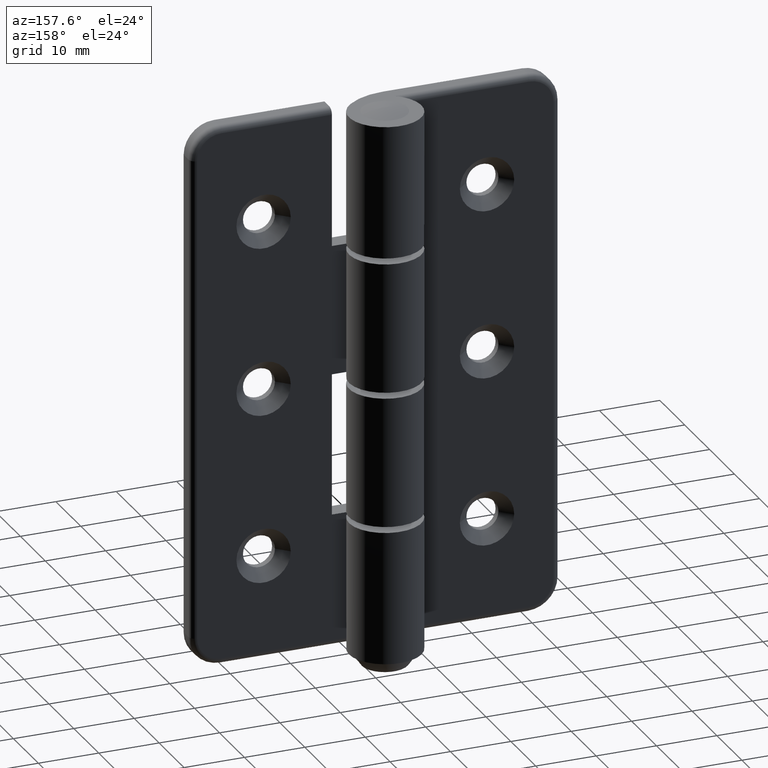
[diagram: clean part render]
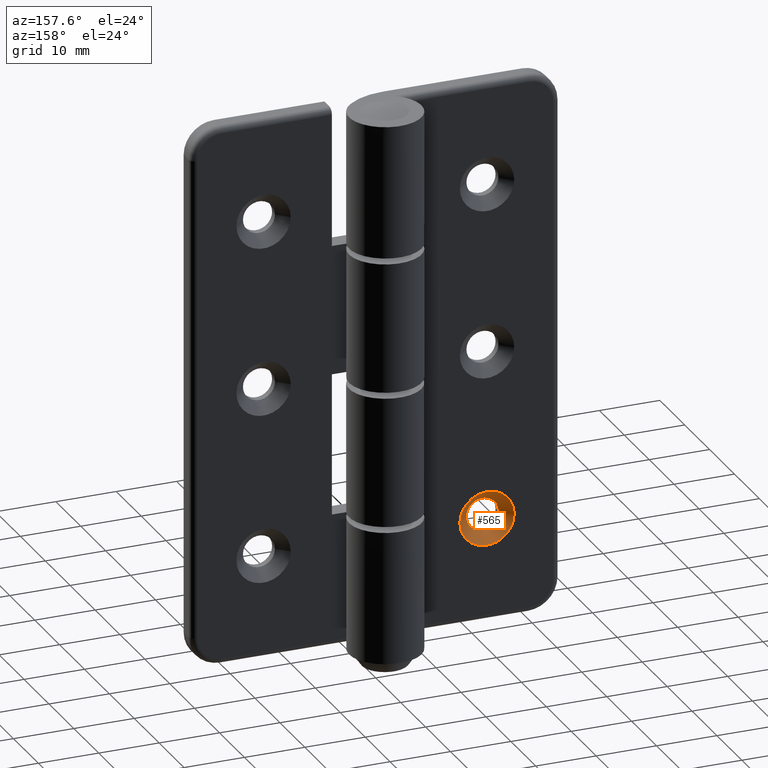
[diagram: same view with one face highlighted and labeled with its STEP entity id]
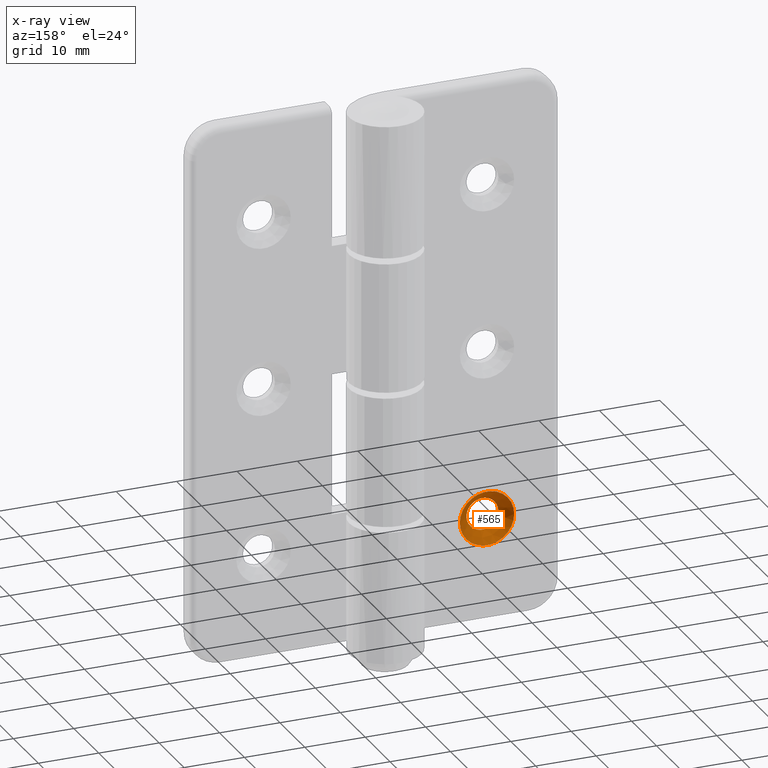
[diagram: x-ray of the same camera — body ghosted, the highlighted face saturated]
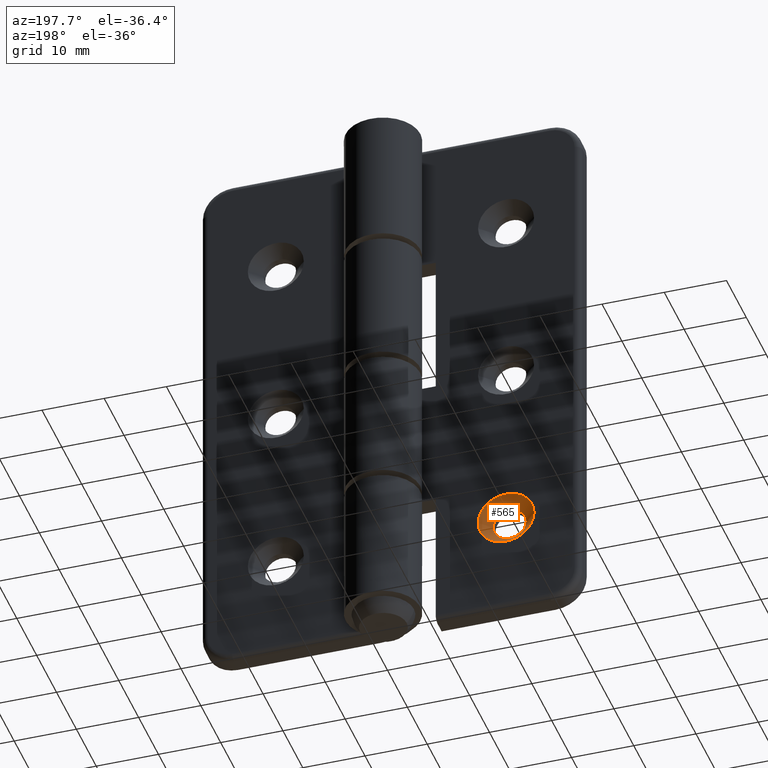
[diagram: same view with one face highlighted and labeled with its STEP entity id]
A machine part, auxiliary view. The second image highlights one B-rep face of the part: STEP entity #565.
The next image is the same camera in x-ray: the body ghosted, the highlighted face saturated — about 0% of this face is hidden behind the body in this view.
A second angle (auxiliary view) of the same face is appended — the face is thin or edge-on in the first view.
In plain terms, the highlighted conical surface has half-angle 45 deg.
Its self-contained STEP definition (entity closure, byte-faithful):
#135=FACE_BOUND('',#196,.T.);
#156=FACE_OUTER_BOUND('',#195,.T.);
#195=EDGE_LOOP('',(#418));
#196=EDGE_LOOP('',(#419));
#249=CIRCLE('',#610,4.5);
#250=CIRCLE('',#611,2.65);
#288=VERTEX_POINT('',#886);
#289=VERTEX_POINT('',#888);
#342=EDGE_CURVE('',#288,#288,#249,.T.);
#343=EDGE_CURVE('',#289,#289,#250,.T.);
#418=ORIENTED_EDGE('',*,*,#342,.F.);
#419=ORIENTED_EDGE('',*,*,#343,.F.);
#560=CONICAL_SURFACE('',#609,3.575,45.);
#565=ADVANCED_FACE('',(#156,#135),#560,.F.);
#609=AXIS2_PLACEMENT_3D('',#885,#699,#700);
#610=AXIS2_PLACEMENT_3D('',#887,#701,#702);
#611=AXIS2_PLACEMENT_3D('',#889,#703,#704);
#699=DIRECTION('center_axis',(0.,1.,0.));
#700=DIRECTION('ref_axis',(1.,0.,0.));
#701=DIRECTION('center_axis',(0.,-1.,0.));
#702=DIRECTION('ref_axis',(1.,0.,0.));
#703=DIRECTION('center_axis',(0.,1.,0.));
#704=DIRECTION('ref_axis',(1.,0.,0.));
#885=CARTESIAN_POINT('Origin',(-18.5,2.075,-73.));
#886=CARTESIAN_POINT('',(-14.,3.,-73.));
#887=CARTESIAN_POINT('Origin',(-18.5,3.,-73.));
#888=CARTESIAN_POINT('',(-15.85,1.15,-73.));
#889=CARTESIAN_POINT('Origin',(-18.5,1.15,-73.));